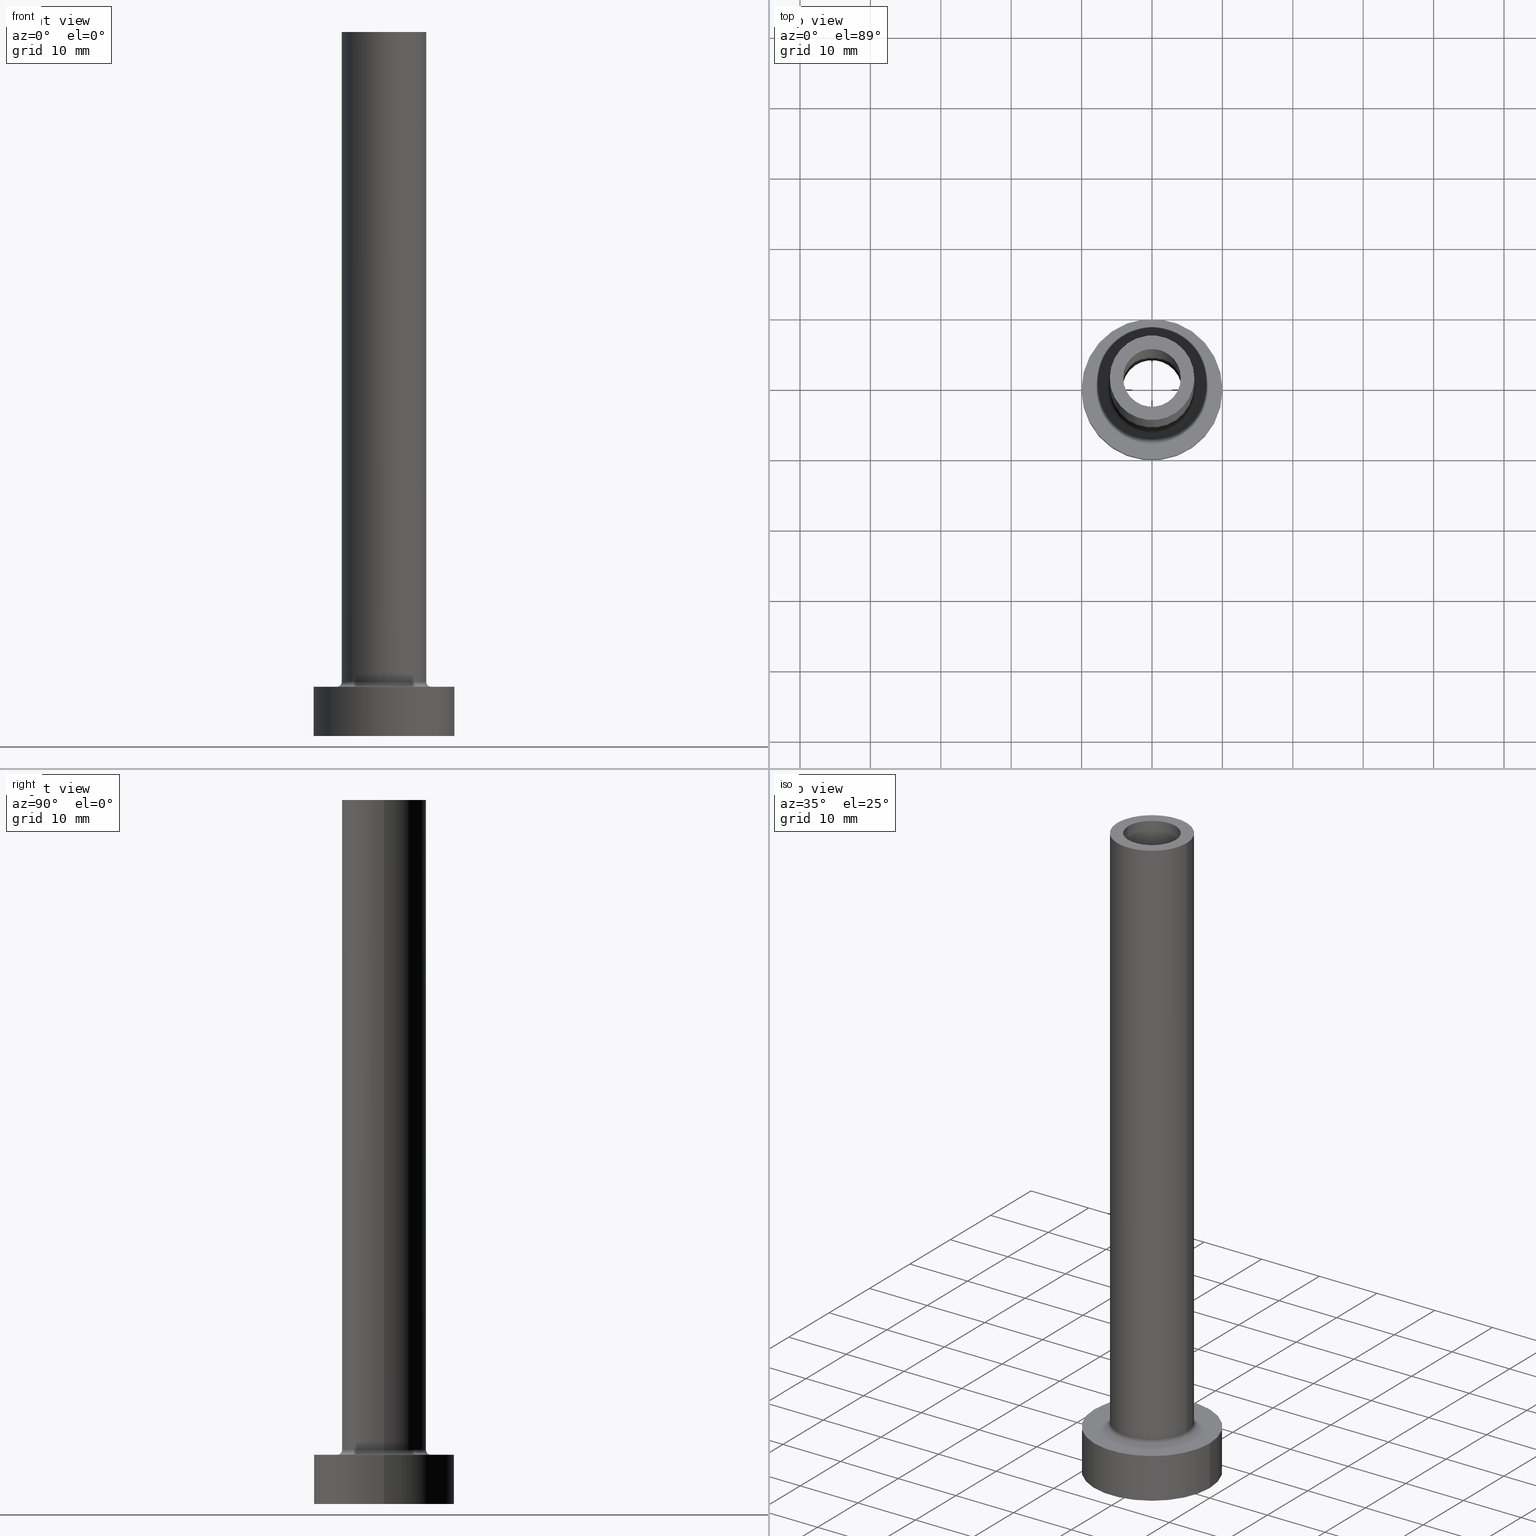
[diagram: canonical four-view strip — front | top / right | iso, engineering-drawing reading convention]
A machine part, canonical four-view strip (front | top / right | iso — engineering-drawing reading convention). The complete STEP part file that produces these views, byte-faithful:
ISO-10303-21;
HEADER;
FILE_DESCRIPTION (( 'STEP AP203' ),
    '1' );
FILE_NAME ('a538.STEP',
    '2023-02-13T09:09:29',
    ( '' ),
    ( '' ),
    'SwSTEP 2.0',
    'SolidWorks 2019',
    '' );
FILE_SCHEMA (( 'CONFIG_CONTROL_DESIGN' ));
ENDSEC;

DATA;
#1 = ORIENTED_EDGE ( 'NONE', *, *, #73, .T. ) ;
#2 = DATE_TIME_ROLE ( 'creation_date' ) ;
#3 = ORIENTED_EDGE ( 'NONE', *, *, #106, .F. ) ;
#4 = AXIS2_PLACEMENT_3D ( 'NONE', #336, #366, #379 ) ;
#5 = CIRCLE ( 'NONE', #334, 4.099999999999999645 ) ;
#6 = EDGE_CURVE ( 'NONE', #36, #221, #17, .T. ) ;
#7 = ORIENTED_EDGE ( 'NONE', *, *, #26, .F. ) ;
#8 = VECTOR ( 'NONE', #266, 1000.000000000000000 ) ;
#9 = CARTESIAN_POINT ( 'NONE',  ( 4.099999999999999645, 5.021051876504146399E-16, 55.00000000000000711 ) ) ;
#10 = EDGE_CURVE ( 'NONE', #215, #367, #236, .T. ) ;
#11 = ORIENTED_EDGE ( 'NONE', *, *, #222, .F. ) ;
#12 = DIRECTION ( 'NONE',  ( 0.000000000000000000, 0.000000000000000000, -1.000000000000000000 ) ) ;
#13 = CARTESIAN_POINT ( 'NONE',  ( 6.700000000000001066, 0.000000000000000000, 6.999999999999999112 ) ) ;
#14 = PLANE ( 'NONE',  #383 ) ;
#15 = CARTESIAN_POINT ( 'NONE',  ( 0.000000000000000000, 0.000000000000000000, 100.0000000000000000 ) ) ;
#16 = DIRECTION ( 'NONE',  ( 1.000000000000000000, 0.000000000000000000, 0.000000000000000000 ) ) ;
#17 = LINE ( 'NONE', #88, #8 ) ;
#18 = DIRECTION ( 'NONE',  ( 0.000000000000000000, 0.000000000000000000, 1.000000000000000000 ) ) ;
#19 = DIRECTION ( 'NONE',  ( 0.000000000000000000, 0.000000000000000000, -1.000000000000000000 ) ) ;
#20 = APPROVAL ( #251, 'NEUR�EN�' ) ;
#21 = CC_DESIGN_APPROVAL ( #57, ( #225 ) ) ;
#22 = DIRECTION ( 'NONE',  ( 1.000000000000000000, 0.000000000000000000, -0.000000000000000000 ) ) ;
#23 = CARTESIAN_POINT ( 'NONE',  ( 0.000000000000000000, 0.000000000000000000, 7.000000000000000000 ) ) ;
#24 = APPROVAL_STATUS ( 'not_yet_approved' ) ;
#25 = DIRECTION ( 'NONE',  ( 1.000000000000000000, 0.000000000000000000, 0.000000000000000000 ) ) ;
#26 = EDGE_CURVE ( 'NONE', #362, #67, #122, .T. ) ;
#27 = DIRECTION ( 'NONE',  ( 0.000000000000000000, 0.000000000000000000, 1.000000000000000000 ) ) ;
#28 = EDGE_CURVE ( 'NONE', #362, #140, #377, .T. ) ;
#29 = CC_DESIGN_PERSON_AND_ORGANIZATION_ASSIGNMENT ( #258, #136, ( #318 ) ) ;
#30 = FACE_OUTER_BOUND ( 'NONE', #111, .T. ) ;
#31 = ORIENTED_EDGE ( 'NONE', *, *, #368, .F. ) ;
#32 = AXIS2_PLACEMENT_3D ( 'NONE', #414, #64, #211 ) ;
#33 = EDGE_LOOP ( 'NONE', ( #178, #430, #144, #107 ) ) ;
#34 = AXIS2_PLACEMENT_3D ( 'NONE', #60, #206, #384 ) ;
#35 = ORIENTED_EDGE ( 'NONE', *, *, #315, .T. ) ;
#36 = VERTEX_POINT ( 'NONE', #445 ) ;
#37 = AXIS2_PLACEMENT_3D ( 'NONE', #269, #82, #374 ) ;
#38 = PERSON_AND_ORGANIZATION_ROLE ( 'classification_officer' ) ;
#39 = ORIENTED_EDGE ( 'NONE', *, *, #10, .F. ) ;
#40 = EDGE_CURVE ( 'NONE', #391, #327, #278, .T. ) ;
#41 = ORIENTED_EDGE ( 'NONE', *, *, #277, .F. ) ;
#42 = AXIS2_PLACEMENT_3D ( 'NONE', #399, #345, #407 ) ;
#43 = DIRECTION ( 'NONE',  ( 0.000000000000000000, 0.000000000000000000, 1.000000000000000000 ) ) ;
#44 = ORIENTED_EDGE ( 'NONE', *, *, #296, .T. ) ;
#45 = DIRECTION ( 'NONE',  ( 0.000000000000000000, 0.000000000000000000, 1.000000000000000000 ) ) ;
#46 = DIRECTION ( 'NONE',  ( 0.000000000000000000, 0.000000000000000000, 1.000000000000000000 ) ) ;
#47 = DIRECTION ( 'NONE',  ( 1.000000000000000000, 0.000000000000000000, 0.000000000000000000 ) ) ;
#48 = DIRECTION ( 'NONE',  ( -0.000000000000000000, -0.000000000000000000, -1.000000000000000000 ) ) ;
#49 = AXIS2_PLACEMENT_3D ( 'NONE', #190, #81, #443 ) ;
#50 = AXIS2_PLACEMENT_3D ( 'NONE', #294, #268, #185 ) ;
#51 = DESIGN_CONTEXT ( 'detailed design', #280, 'design' ) ;
#52 = DIRECTION ( 'NONE',  ( 0.000000000000000000, 0.000000000000000000, 1.000000000000000000 ) ) ;
#53 = DIRECTION ( 'NONE',  ( -0.000000000000000000, -0.000000000000000000, -1.000000000000000000 ) ) ;
#54 = FACE_OUTER_BOUND ( 'NONE', #112, .T. ) ;
#55 = ORIENTED_EDGE ( 'NONE', *, *, #184, .T. ) ;
#56 = CYLINDRICAL_SURFACE ( 'NONE', #156, 10.00000000000000000 ) ;
#57 = APPROVAL ( #24, 'NEUR�EN�' ) ;
#58 = VECTOR ( 'NONE', #297, 1000.000000000000000 ) ;
#59 = DIRECTION ( 'NONE',  ( 0.000000000000000000, 0.000000000000000000, 1.000000000000000000 ) ) ;
#60 = CARTESIAN_POINT ( 'NONE',  ( 0.000000000000000000, 0.000000000000000000, 100.0000000000000000 ) ) ;
#61 = CARTESIAN_POINT ( 'NONE',  ( 0.000000000000000000, 0.000000000000000000, 7.699999999999998401 ) ) ;
#62 = VECTOR ( 'NONE', #401, 1000.000000000000000 ) ;
#63 = DIRECTION ( 'NONE',  ( 1.000000000000000000, 0.000000000000000000, 0.000000000000000000 ) ) ;
#64 = DIRECTION ( 'NONE',  ( 0.000000000000000000, 0.000000000000000000, 1.000000000000000000 ) ) ;
#65 = CIRCLE ( 'NONE', #50, 6.700000000000001066 ) ;
#66 = DATE_AND_TIME ( #333, #442 ) ;
#67 = VERTEX_POINT ( 'NONE', #229 ) ;
#68 = PERSON_AND_ORGANIZATION ( #413, #357 ) ;
#69 = CC_DESIGN_SECURITY_CLASSIFICATION ( #223, ( #318 ) ) ;
#70 = ORIENTED_EDGE ( 'NONE', *, *, #404, .T. ) ;
#71 = PERSON_AND_ORGANIZATION ( #413, #357 ) ;
#72 = ORIENTED_EDGE ( 'NONE', *, *, #355, .T. ) ;
#73 = EDGE_CURVE ( 'NONE', #400, #289, #188, .T. ) ;
#74 = CALENDAR_DATE ( 2023, 13, 2 ) ;
#75 = VERTEX_POINT ( 'NONE', #13 ) ;
#76 = CYLINDRICAL_SURFACE ( 'NONE', #4, 10.00000000000000000 ) ;
#77 = VERTEX_POINT ( 'NONE', #153 ) ;
#78 = CIRCLE ( 'NONE', #433, 4.250000000000000000 ) ;
#79 = LINE ( 'NONE', #159, #62 ) ;
#80 = DIRECTION ( 'NONE',  ( 1.000000000000000000, 0.000000000000000000, 0.000000000000000000 ) ) ;
#81 = DIRECTION ( 'NONE',  ( 0.000000000000000000, 0.000000000000000000, 1.000000000000000000 ) ) ;
#82 = DIRECTION ( 'NONE',  ( -0.000000000000000000, -0.000000000000000000, -1.000000000000000000 ) ) ;
#83 = CARTESIAN_POINT ( 'NONE',  ( -4.250000000000000000, 0.000000000000000000, 0.000000000000000000 ) ) ;
#84 = CYLINDRICAL_SURFACE ( 'NONE', #298, 4.099999999999999645 ) ;
#85 = CC_DESIGN_PERSON_AND_ORGANIZATION_ASSIGNMENT ( #68, #38, ( #223 ) ) ;
#86 = AXIS2_PLACEMENT_3D ( 'NONE', #207, #93, #353 ) ;
#87 = DIRECTION ( 'NONE',  ( 1.000000000000000000, 0.000000000000000000, 0.000000000000000000 ) ) ;
#88 = CARTESIAN_POINT ( 'NONE',  ( 4.250000000000000000, 5.204748896376250699E-16, 67.02081528017131973 ) ) ;
#89 = FACE_BOUND ( 'NONE', #226, .T. ) ;
#90 = CC_DESIGN_PERSON_AND_ORGANIZATION_ASSIGNMENT ( #165, #279, ( #275 ) ) ;
#91 = LINE ( 'NONE', #238, #361 ) ;
#92 = DIRECTION ( 'NONE',  ( 0.000000000000000000, 0.000000000000000000, 1.000000000000000000 ) ) ;
#93 = DIRECTION ( 'NONE',  ( 0.000000000000000000, 0.000000000000000000, 1.000000000000000000 ) ) ;
#94 =( GEOMETRIC_REPRESENTATION_CONTEXT ( 3 ) GLOBAL_UNCERTAINTY_ASSIGNED_CONTEXT ( ( #151 ) ) GLOBAL_UNIT_ASSIGNED_CONTEXT ( ( #412, #237, #210 ) ) REPRESENTATION_CONTEXT ( 'NONE', 'WORKASPACE' ) );
#95 = PLANE ( 'NONE',  #161 ) ;
#96 = ADVANCED_FACE ( 'NONE', ( #128 ), #231, .T. ) ;
#97 = DIRECTION ( 'NONE',  ( 1.000000000000000000, 0.000000000000000000, 0.000000000000000000 ) ) ;
#98 = MANIFOLD_SOLID_BREP ( 'Odebrat vysunut�m4', #213 ) ;
#99 = DIRECTION ( 'NONE',  ( -0.000000000000000000, -0.000000000000000000, -1.000000000000000000 ) ) ;
#100 = CARTESIAN_POINT ( 'NONE',  ( 0.000000000000000000, 0.000000000000000000, 67.02081528017131973 ) ) ;
#101 = CARTESIAN_POINT ( 'NONE',  ( 0.000000000000000000, 0.000000000000000000, 55.00000000000000711 ) ) ;
#102 = CC_DESIGN_DATE_AND_TIME_ASSIGNMENT ( #326, #254, ( #223 ) ) ;
#103 = CIRCLE ( 'NONE', #49, 4.099999999999999645 ) ;
#104 = CARTESIAN_POINT ( 'NONE',  ( 6.000000000000000888, 7.347880794884119736E-16, 7.699999999999998401 ) ) ;
#105 = CIRCLE ( 'NONE', #168, 6.700000000000001066 ) ;
#106 = EDGE_CURVE ( 'NONE', #67, #391, #91, .T. ) ;
#107 = ORIENTED_EDGE ( 'NONE', *, *, #328, .F. ) ;
#108 = COORDINATED_UNIVERSAL_TIME_OFFSET ( 1, 0, .AHEAD. ) ;
#109 = CARTESIAN_POINT ( 'NONE',  ( -4.250000000000000000, 0.000000000000000000, 67.02081528017131973 ) ) ;
#110 = APPROVAL ( #172, 'NEUR�EN�' ) ;
#111 = EDGE_LOOP ( 'NONE', ( #197, #402, #70, #359 ) ) ;
#112 = EDGE_LOOP ( 'NONE', ( #394, #11, #364, #44 ) ) ;
#113 = CC_DESIGN_PERSON_AND_ORGANIZATION_ASSIGNMENT ( #455, #145, ( #318 ) ) ;
#114 = ORIENTED_EDGE ( 'NONE', *, *, #73, .F. ) ;
#115 = VECTOR ( 'NONE', #19, 1000.000000000000000 ) ;
#116 = ORIENTED_EDGE ( 'NONE', *, *, #328, .T. ) ;
#117 = DIRECTION ( 'NONE',  ( 0.000000000000000000, -1.000000000000000000, 0.000000000000000000 ) ) ;
#118 = CIRCLE ( 'NONE', #191, 4.250000000000000000 ) ;
#119 = EDGE_LOOP ( 'NONE', ( #114, #439, #35, #421 ) ) ;
#120 = DIRECTION ( 'NONE',  ( -1.000000000000000000, 0.000000000000000000, 0.000000000000000000 ) ) ;
#121 = ORIENTED_EDGE ( 'NONE', *, *, #355, .F. ) ;
#122 = CIRCLE ( 'NONE', #259, 6.000000000000000888 ) ;
#123 = CARTESIAN_POINT ( 'NONE',  ( -4.099999999999999645, 0.000000000000000000, 100.0000000000000000 ) ) ;
#124 = DIRECTION ( 'NONE',  ( -0.000000000000000000, -0.000000000000000000, -1.000000000000000000 ) ) ;
#125 = CARTESIAN_POINT ( 'NONE',  ( 0.000000000000000000, 0.000000000000000000, 55.00000000000000711 ) ) ;
#126 = ADVANCED_FACE ( 'NONE', ( #382 ), #56, .T. ) ;
#127 = DIRECTION ( 'NONE',  ( 1.000000000000000000, 0.000000000000000000, 0.000000000000000000 ) ) ;
#128 = FACE_OUTER_BOUND ( 'NONE', #175, .T. ) ;
#129 = CARTESIAN_POINT ( 'NONE',  ( 0.000000000000000000, 0.000000000000000000, 55.00000000000000711 ) ) ;
#130 = ADVANCED_FACE ( 'NONE', ( #342 ), #84, .F. ) ;
#131 = DIRECTION ( 'NONE',  ( 0.000000000000000000, 0.000000000000000000, 1.000000000000000000 ) ) ;
#132 = CALENDAR_DATE ( 2023, 13, 2 ) ;
#133 = CARTESIAN_POINT ( 'NONE',  ( -10.00000000000000000, 0.000000000000000000, 7.000000000000000000 ) ) ;
#134 = DIRECTION ( 'NONE',  ( 0.000000000000000000, 0.000000000000000000, 1.000000000000000000 ) ) ;
#135 = DIRECTION ( 'NONE',  ( -0.000000000000000000, -0.000000000000000000, -1.000000000000000000 ) ) ;
#136 = PERSON_AND_ORGANIZATION_ROLE ( 'design_supplier' ) ;
#137 = ADVANCED_FACE ( 'NONE', ( #271, #405 ), #452, .T. ) ;
#138 = CC_DESIGN_APPROVAL ( #20, ( #223 ) ) ;
#139 = PERSON_AND_ORGANIZATION_ROLE ( 'creator' ) ;
#140 = VERTEX_POINT ( 'NONE', #104 ) ;
#141 = AXIS2_PLACEMENT_3D ( 'NONE', #243, #135, #317 ) ;
#142 = ORIENTED_EDGE ( 'NONE', *, *, #265, .F. ) ;
#143 = EDGE_CURVE ( 'NONE', #321, #221, #288, .T. ) ;
#144 = ORIENTED_EDGE ( 'NONE', *, *, #227, .F. ) ;
#145 = PERSON_AND_ORGANIZATION_ROLE ( 'creator' ) ;
#146 = AXIS2_PLACEMENT_3D ( 'NONE', #351, #198, #347 ) ;
#147 = ORIENTED_EDGE ( 'NONE', *, *, #331, .F. ) ;
#148 = ORIENTED_EDGE ( 'NONE', *, *, #143, .T. ) ;
#149 = FACE_BOUND ( 'NONE', #409, .T. ) ;
#150 = CARTESIAN_POINT ( 'NONE',  ( 0.000000000000000000, 0.000000000000000000, 100.0000000000000000 ) ) ;
#151 = UNCERTAINTY_MEASURE_WITH_UNIT (LENGTH_MEASURE( 1.000000000000000082E-05 ), #412, 'distance_accuracy_value', 'NONE');
#152 = DIRECTION ( 'NONE',  ( 0.000000000000000000, 0.000000000000000000, -1.000000000000000000 ) ) ;
#153 = CARTESIAN_POINT ( 'NONE',  ( -4.099999999999999645, 0.000000000000000000, 55.00000000000000711 ) ) ;
#154 = CYLINDRICAL_SURFACE ( 'NONE', #42, 4.099999999999999645 ) ;
#155 = DIRECTION ( 'NONE',  ( -1.000000000000000000, 0.000000000000000000, 0.000000000000000000 ) ) ;
#156 = AXIS2_PLACEMENT_3D ( 'NONE', #337, #48, #192 ) ;
#157 = CYLINDRICAL_SURFACE ( 'NONE', #247, 4.250000000000000000 ) ;
#158 = PRODUCT_RELATED_PRODUCT_CATEGORY ( 'detail', '', ( #275 ) ) ;
#159 = CARTESIAN_POINT ( 'NONE',  ( -4.099999999999999645, 0.000000000000000000, 100.0000000000000000 ) ) ;
#160 = ORIENTED_EDGE ( 'NONE', *, *, #420, .F. ) ;
#161 = AXIS2_PLACEMENT_3D ( 'NONE', #450, #131, #22 ) ;
#162 = CIRCLE ( 'NONE', #319, 4.099999999999999645 ) ;
#163 = COORDINATED_UNIVERSAL_TIME_OFFSET ( 1, 0, .AHEAD. ) ;
#164 = CARTESIAN_POINT ( 'NONE',  ( 0.000000000000000000, 0.000000000000000000, 7.000000000000000000 ) ) ;
#165 = PERSON_AND_ORGANIZATION ( #413, #357 ) ;
#166 = DIRECTION ( 'NONE',  ( 0.000000000000000000, 0.000000000000000000, 1.000000000000000000 ) ) ;
#167 = AXIS2_PLACEMENT_3D ( 'NONE', #224, #43, #270 ) ;
#168 = AXIS2_PLACEMENT_3D ( 'NONE', #164, #416, #97 ) ;
#169 = ADVANCED_FACE ( 'NONE', ( #419 ), #204, .F. ) ;
#170 = DIRECTION ( 'NONE',  ( -1.000000000000000000, 0.000000000000000000, 0.000000000000000000 ) ) ;
#171 = CARTESIAN_POINT ( 'NONE',  ( 4.250000000000000000, 5.204748896376250699E-16, 0.000000000000000000 ) ) ;
#172 = APPROVAL_STATUS ( 'not_yet_approved' ) ;
#173 = EDGE_LOOP ( 'NONE', ( #458, #147, #371, #55 ) ) ;
#174 = AXIS2_PLACEMENT_3D ( 'NONE', #381, #134, #352 ) ;
#175 = EDGE_LOOP ( 'NONE', ( #7, #260, #305, #3 ) ) ;
#176 = COORDINATED_UNIVERSAL_TIME_OFFSET ( 1, 0, .AHEAD. ) ;
#177 = CARTESIAN_POINT ( 'NONE',  ( -4.250000000000000000, 0.000000000000000000, 55.00000000000000711 ) ) ;
#178 = ORIENTED_EDGE ( 'NONE', *, *, #184, .F. ) ;
#179 = APPROVAL_DATE_TIME ( #363, #20 ) ;
#180 = ORIENTED_EDGE ( 'NONE', *, *, #331, .T. ) ;
#181 = APPROVAL_PERSON_ORGANIZATION ( #427, #110, #329 ) ;
#182 = CIRCLE ( 'NONE', #397, 6.000000000000000888 ) ;
#183 = ORIENTED_EDGE ( 'NONE', *, *, #315, .F. ) ;
#184 = EDGE_CURVE ( 'NONE', #391, #140, #444, .T. ) ;
#185 = DIRECTION ( 'NONE',  ( 1.000000000000000000, 0.000000000000000000, 0.000000000000000000 ) ) ;
#186 = EDGE_LOOP ( 'NONE', ( #160, #41 ) ) ;
#187 = DIRECTION ( 'NONE',  ( 0.000000000000000000, 0.000000000000000000, 1.000000000000000000 ) ) ;
#188 = LINE ( 'NONE', #311, #115 ) ;
#189 = CC_DESIGN_DATE_AND_TIME_ASSIGNMENT ( #390, #2, ( #225 ) ) ;
#190 = CARTESIAN_POINT ( 'NONE',  ( 0.000000000000000000, 0.000000000000000000, 55.00000000000000711 ) ) ;
#191 = AXIS2_PLACEMENT_3D ( 'NONE', #451, #99, #205 ) ;
#192 = DIRECTION ( 'NONE',  ( -1.000000000000000000, 0.000000000000000000, 0.000000000000000000 ) ) ;
#193 = CARTESIAN_POINT ( 'NONE',  ( -10.00000000000000000, 0.000000000000000000, 0.000000000000000000 ) ) ;
#194 = ORIENTED_EDGE ( 'NONE', *, *, #216, .F. ) ;
#195 = PRODUCT_DEFINITION_SHAPE ( 'NONE', 'NONE',  #225 ) ;
#196 = CARTESIAN_POINT ( 'NONE',  ( 0.000000000000000000, 0.000000000000000000, 0.000000000000000000 ) ) ;
#197 = ORIENTED_EDGE ( 'NONE', *, *, #429, .T. ) ;
#198 = DIRECTION ( 'NONE',  ( 0.000000000000000000, 0.000000000000000000, 1.000000000000000000 ) ) ;
#199 = DIRECTION ( 'NONE',  ( 0.000000000000000000, 0.000000000000000000, 1.000000000000000000 ) ) ;
#200 = AXIS2_PLACEMENT_3D ( 'NONE', #101, #166, #354 ) ;
#201 = CARTESIAN_POINT ( 'NONE',  ( 10.00000000000000000, 1.224646799147353256E-15, 0.000000000000000000 ) ) ;
#202 = EDGE_CURVE ( 'NONE', #140, #391, #182, .T. ) ;
#203 = DIRECTION ( 'NONE',  ( 1.000000000000000000, 0.000000000000000000, 0.000000000000000000 ) ) ;
#204 = TOROIDAL_SURFACE ( 'NONE', #285, 6.700000000000001066, 0.6999999999999999556 ) ;
#205 = DIRECTION ( 'NONE',  ( 1.000000000000000000, 0.000000000000000000, 0.000000000000000000 ) ) ;
#206 = DIRECTION ( 'NONE',  ( -0.000000000000000000, -0.000000000000000000, -1.000000000000000000 ) ) ;
#207 = CARTESIAN_POINT ( 'NONE',  ( 0.000000000000000000, 0.000000000000000000, 7.699999999999998401 ) ) ;
#208 = LOCAL_TIME ( 10, 9, 29.00000000000000000, #163 ) ;
#209 = CIRCLE ( 'NONE', #262, 10.00000000000000000 ) ;
#210 =( NAMED_UNIT ( * ) SI_UNIT ( $, .STERADIAN. ) SOLID_ANGLE_UNIT ( ) );
#211 = DIRECTION ( 'NONE',  ( 1.000000000000000000, 0.000000000000000000, -0.000000000000000000 ) ) ;
#212 = EDGE_CURVE ( 'NONE', #36, #257, #248, .T. ) ;
#213 = CLOSED_SHELL ( 'NONE', ( #293, #436, #169, #96, #126, #282, #137, #446, #422, #387, #449, #358, #310, #130 ) ) ;
#214 = APPROVAL_DATE_TIME ( #392, #57 ) ;
#215 = VERTEX_POINT ( 'NONE', #133 ) ;
#216 = EDGE_CURVE ( 'NONE', #448, #367, #456, .T. ) ;
#217 = ORIENTED_EDGE ( 'NONE', *, *, #216, .T. ) ;
#218 = PERSON_AND_ORGANIZATION ( #413, #357 ) ;
#219 = EDGE_LOOP ( 'NONE', ( #396, #1, #31, #183 ) ) ;
#220 = CALENDAR_DATE ( 2023, 13, 2 ) ;
#221 = VERTEX_POINT ( 'NONE', #171 ) ;
#222 = EDGE_CURVE ( 'NONE', #215, #295, #209, .T. ) ;
#223 = SECURITY_CLASSIFICATION ( '', '', #249 ) ;
#224 = CARTESIAN_POINT ( 'NONE',  ( 0.000000000000000000, 0.000000000000000000, 55.00000000000000711 ) ) ;
#225 = PRODUCT_DEFINITION ( 'NEZN�M�', '', #318, #51 ) ;
#226 = EDGE_LOOP ( 'NONE', ( #461, #299 ) ) ;
#227 = EDGE_CURVE ( 'NONE', #75, #327, #105, .T. ) ;
#228 = CARTESIAN_POINT ( 'NONE',  ( 0.000000000000000000, 0.000000000000000000, 7.000000000000000000 ) ) ;
#229 = CARTESIAN_POINT ( 'NONE',  ( -6.000000000000000888, 0.000000000000000000, 100.0000000000000000 ) ) ;
#230 = LINE ( 'NONE', #403, #457 ) ;
#231 = CYLINDRICAL_SURFACE ( 'NONE', #37, 6.000000000000000888 ) ;
#232 = DIRECTION ( 'NONE',  ( -0.000000000000000000, -0.000000000000000000, -1.000000000000000000 ) ) ;
#233 = CIRCLE ( 'NONE', #174, 4.099999999999999645 ) ;
#234 = DIRECTION ( 'NONE',  ( 0.000000000000000000, 0.000000000000000000, -1.000000000000000000 ) ) ;
#235 = CARTESIAN_POINT ( 'NONE',  ( -6.700000000000001066, 8.205133554287267548E-16, 6.999999999999999112 ) ) ;
#236 = LINE ( 'NONE', #435, #453 ) ;
#237 =( NAMED_UNIT ( * ) PLANE_ANGLE_UNIT ( ) SI_UNIT ( $, .RADIAN. ) );
#238 = CARTESIAN_POINT ( 'NONE',  ( -6.000000000000000888, 0.000000000000000000, 100.0000000000000000 ) ) ;
#239 = APPLICATION_PROTOCOL_DEFINITION ( 'international standard', 'config_control_design', 1994, #280 ) ;
#240 = DIRECTION ( 'NONE',  ( 1.000000000000000000, 0.000000000000000000, 0.000000000000000000 ) ) ;
#241 = LOCAL_TIME ( 10, 9, 29.00000000000000000, #459 ) ;
#242 = ORIENTED_EDGE ( 'NONE', *, *, #212, .F. ) ;
#243 = CARTESIAN_POINT ( 'NONE',  ( 0.000000000000000000, 0.000000000000000000, 0.000000000000000000 ) ) ;
#244 = FACE_OUTER_BOUND ( 'NONE', #301, .T. ) ;
#245 = EDGE_CURVE ( 'NONE', #257, #321, #460, .T. ) ;
#246 = DIRECTION ( 'NONE',  ( 0.000000000000000000, 0.000000000000000000, -1.000000000000000000 ) ) ;
#247 = AXIS2_PLACEMENT_3D ( 'NONE', #343, #12, #120 ) ;
#248 = CIRCLE ( 'NONE', #200, 4.250000000000000000 ) ;
#249 = SECURITY_CLASSIFICATION_LEVEL ( 'unclassified' ) ;
#250 = DIRECTION ( 'NONE',  ( 1.000000000000000000, 0.000000000000000000, 0.000000000000000000 ) ) ;
#251 = APPROVAL_STATUS ( 'not_yet_approved' ) ;
#252 = ORIENTED_EDGE ( 'NONE', *, *, #202, .F. ) ;
#253 = APPLICATION_CONTEXT ( 'configuration controlled 3d designs of mechanical parts and assemblies' ) ;
#254 = DATE_TIME_ROLE ( 'classification_date' ) ;
#255 = EDGE_LOOP ( 'NONE', ( #314, #432, #356, #148 ) ) ;
#256 = AXIS2_PLACEMENT_3D ( 'NONE', #196, #18, #87 ) ;
#257 = VERTEX_POINT ( 'NONE', #177 ) ;
#258 = PERSON_AND_ORGANIZATION ( #413, #357 ) ;
#259 = AXIS2_PLACEMENT_3D ( 'NONE', #150, #46, #80 ) ;
#260 = ORIENTED_EDGE ( 'NONE', *, *, #28, .T. ) ;
#261 = ORIENTED_EDGE ( 'NONE', *, *, #296, .F. ) ;
#262 = AXIS2_PLACEMENT_3D ( 'NONE', #23, #59, #203 ) ;
#263 = AXIS2_PLACEMENT_3D ( 'NONE', #100, #246, #170 ) ;
#264 = CARTESIAN_POINT ( 'NONE',  ( 0.000000000000000000, 0.000000000000000000, 100.0000000000000000 ) ) ;
#265 = EDGE_CURVE ( 'NONE', #327, #75, #65, .T. ) ;
#266 = DIRECTION ( 'NONE',  ( 0.000000000000000000, 0.000000000000000000, -1.000000000000000000 ) ) ;
#267 = EDGE_CURVE ( 'NONE', #289, #77, #162, .T. ) ;
#268 = DIRECTION ( 'NONE',  ( -0.000000000000000000, -0.000000000000000000, -1.000000000000000000 ) ) ;
#269 = CARTESIAN_POINT ( 'NONE',  ( 0.000000000000000000, 0.000000000000000000, 100.0000000000000000 ) ) ;
#270 = DIRECTION ( 'NONE',  ( 1.000000000000000000, 0.000000000000000000, -0.000000000000000000 ) ) ;
#271 = FACE_BOUND ( 'NONE', #428, .T. ) ;
#272 = FACE_OUTER_BOUND ( 'NONE', #219, .T. ) ;
#273 = CIRCLE ( 'NONE', #291, 6.000000000000000888 ) ;
#274 = ORIENTED_EDGE ( 'NONE', *, *, #265, .T. ) ;
#275 = PRODUCT ( 'a538', 'a538', '', ( #454 ) ) ;
#276 = EDGE_LOOP ( 'NONE', ( #121, #340, #217, #39 ) ) ;
#277 = EDGE_CURVE ( 'NONE', #400, #303, #5, .T. ) ;
#278 = CIRCLE ( 'NONE', #438, 0.7000000000000000666 ) ;
#279 = PERSON_AND_ORGANIZATION_ROLE ( 'design_owner' ) ;
#280 = APPLICATION_CONTEXT ( 'configuration controlled 3d designs of mechanical parts and assemblies' ) ;
#281 = DIRECTION ( 'NONE',  ( 0.000000000000000000, 0.000000000000000000, 1.000000000000000000 ) ) ;
#282 = ADVANCED_FACE ( 'NONE', ( #54 ), #76, .T. ) ;
#283 = CYLINDRICAL_SURFACE ( 'NONE', #34, 6.000000000000000888 ) ;
#284 = CARTESIAN_POINT ( 'NONE',  ( 0.000000000000000000, 0.000000000000000000, 7.699999999999998401 ) ) ;
#285 = AXIS2_PLACEMENT_3D ( 'NONE', #61, #27, #25 ) ;
#286 = LOCAL_TIME ( 10, 9, 29.00000000000000000, #176 ) ;
#287 = ORIENTED_EDGE ( 'NONE', *, *, #222, .T. ) ;
#288 = CIRCLE ( 'NONE', #141, 4.250000000000000000 ) ;
#289 = VERTEX_POINT ( 'NONE', #9 ) ;
#290 = ORIENTED_EDGE ( 'NONE', *, *, #26, .T. ) ;
#291 = AXIS2_PLACEMENT_3D ( 'NONE', #264, #45, #16 ) ;
#292 = SHAPE_DEFINITION_REPRESENTATION ( #195, #338 ) ;
#293 = ADVANCED_FACE ( 'NONE', ( #272 ), #154, .F. ) ;
#294 = CARTESIAN_POINT ( 'NONE',  ( 0.000000000000000000, 0.000000000000000000, 7.000000000000000000 ) ) ;
#295 = VERTEX_POINT ( 'NONE', #431 ) ;
#296 = EDGE_CURVE ( 'NONE', #367, #448, #426, .T. ) ;
#297 = DIRECTION ( 'NONE',  ( 0.000000000000000000, 0.000000000000000000, -1.000000000000000000 ) ) ;
#298 = AXIS2_PLACEMENT_3D ( 'NONE', #15, #234, #155 ) ;
#299 = ORIENTED_EDGE ( 'NONE', *, *, #404, .F. ) ;
#300 = FACE_OUTER_BOUND ( 'NONE', #389, .T. ) ;
#301 = EDGE_LOOP ( 'NONE', ( #330, #252, #116, #142 ) ) ;
#302 = DIRECTION ( 'NONE',  ( 0.000000000000000000, 0.000000000000000000, 1.000000000000000000 ) ) ;
#303 = VERTEX_POINT ( 'NONE', #123 ) ;
#304 = CARTESIAN_POINT ( 'NONE',  ( 0.000000000000000000, 0.000000000000000000, 100.0000000000000000 ) ) ;
#305 = ORIENTED_EDGE ( 'NONE', *, *, #202, .T. ) ;
#306 = DIRECTION ( 'NONE',  ( 1.000000000000000000, 0.000000000000000000, -0.000000000000000000 ) ) ;
#307 = DIRECTION ( 'NONE',  ( -0.000000000000000000, -0.000000000000000000, -1.000000000000000000 ) ) ;
#308 = CARTESIAN_POINT ( 'NONE',  ( 6.000000000000000888, 7.347880794884119736E-16, 100.0000000000000000 ) ) ;
#309 = AXIS2_PLACEMENT_3D ( 'NONE', #434, #117, #152 ) ;
#310 = ADVANCED_FACE ( 'NONE', ( #149, #300 ), #369, .F. ) ;
#311 = CARTESIAN_POINT ( 'NONE',  ( 4.099999999999999645, 5.021051876504146399E-16, 100.0000000000000000 ) ) ;
#312 = APPLICATION_PROTOCOL_DEFINITION ( 'international standard', 'config_control_design', 1994, #253 ) ;
#313 = DIRECTION ( 'NONE',  ( 1.000000000000000000, 0.000000000000000000, 0.000000000000000000 ) ) ;
#314 = ORIENTED_EDGE ( 'NONE', *, *, #6, .F. ) ;
#315 = EDGE_CURVE ( 'NONE', #303, #77, #79, .T. ) ;
#316 = FACE_OUTER_BOUND ( 'NONE', #335, .T. ) ;
#317 = DIRECTION ( 'NONE',  ( 1.000000000000000000, 0.000000000000000000, 0.000000000000000000 ) ) ;
#318 = PRODUCT_DEFINITION_FORMATION_WITH_SPECIFIED_SOURCE ( 'LIBOVOLN�', '', #275, .NOT_KNOWN. ) ;
#319 = AXIS2_PLACEMENT_3D ( 'NONE', #125, #302, #437 ) ;
#320 = CARTESIAN_POINT ( 'NONE',  ( 4.099999999999999645, 5.021051876504146399E-16, 100.0000000000000000 ) ) ;
#321 = VERTEX_POINT ( 'NONE', #83 ) ;
#322 = APPROVAL_DATE_TIME ( #66, #110 ) ;
#323 = CIRCLE ( 'NONE', #309, 0.7000000000000000666 ) ;
#324 = CC_DESIGN_APPROVAL ( #110, ( #318 ) ) ;
#325 = ORIENTED_EDGE ( 'NONE', *, *, #429, .F. ) ;
#326 = DATE_AND_TIME ( #220, #286 ) ;
#327 = VERTEX_POINT ( 'NONE', #235 ) ;
#328 = EDGE_CURVE ( 'NONE', #140, #75, #323, .T. ) ;
#329 = APPROVAL_ROLE ( '' ) ;
#330 = ORIENTED_EDGE ( 'NONE', *, *, #40, .F. ) ;
#331 = EDGE_CURVE ( 'NONE', #67, #362, #273, .T. ) ;
#332 = AXIS2_PLACEMENT_3D ( 'NONE', #447, #92, #313 ) ;
#333 = CALENDAR_DATE ( 2023, 13, 2 ) ;
#334 = AXIS2_PLACEMENT_3D ( 'NONE', #339, #376, #127 ) ;
#335 = EDGE_LOOP ( 'NONE', ( #261, #194 ) ) ;
#336 = CARTESIAN_POINT ( 'NONE',  ( 0.000000000000000000, 0.000000000000000000, 7.000000000000000000 ) ) ;
#337 = CARTESIAN_POINT ( 'NONE',  ( 0.000000000000000000, 0.000000000000000000, 7.000000000000000000 ) ) ;
#338 = ADVANCED_BREP_SHAPE_REPRESENTATION ( 'a538', ( #98, #146 ), #94 ) ;
#339 = CARTESIAN_POINT ( 'NONE',  ( 0.000000000000000000, 0.000000000000000000, 100.0000000000000000 ) ) ;
#340 = ORIENTED_EDGE ( 'NONE', *, *, #378, .T. ) ;
#341 = FACE_OUTER_BOUND ( 'NONE', #385, .T. ) ;
#342 = FACE_OUTER_BOUND ( 'NONE', #119, .T. ) ;
#343 = CARTESIAN_POINT ( 'NONE',  ( 0.000000000000000000, 0.000000000000000000, 67.02081528017131973 ) ) ;
#344 = EDGE_LOOP ( 'NONE', ( #287, #72 ) ) ;
#345 = DIRECTION ( 'NONE',  ( 0.000000000000000000, 0.000000000000000000, -1.000000000000000000 ) ) ;
#346 = CARTESIAN_POINT ( 'NONE',  ( -6.700000000000001066, 8.205133554287267548E-16, 7.699999999999998401 ) ) ;
#347 = DIRECTION ( 'NONE',  ( 1.000000000000000000, 0.000000000000000000, 0.000000000000000000 ) ) ;
#348 = APPROVAL_PERSON_ORGANIZATION ( #218, #20, #424 ) ;
#349 = CARTESIAN_POINT ( 'NONE',  ( 0.000000000000000000, 0.000000000000000000, 0.000000000000000000 ) ) ;
#350 = PERSON_AND_ORGANIZATION ( #413, #357 ) ;
#351 = CARTESIAN_POINT ( 'NONE',  ( 0.000000000000000000, 0.000000000000000000, 0.000000000000000000 ) ) ;
#352 = DIRECTION ( 'NONE',  ( 1.000000000000000000, 0.000000000000000000, 0.000000000000000000 ) ) ;
#353 = DIRECTION ( 'NONE',  ( 1.000000000000000000, 0.000000000000000000, 0.000000000000000000 ) ) ;
#354 = DIRECTION ( 'NONE',  ( 1.000000000000000000, 0.000000000000000000, 0.000000000000000000 ) ) ;
#355 = EDGE_CURVE ( 'NONE', #295, #215, #406, .T. ) ;
#356 = ORIENTED_EDGE ( 'NONE', *, *, #245, .T. ) ;
#357 = ORGANIZATION ( 'NEUR�EN�', 'NEUR�EN�', '' ) ;
#358 = ADVANCED_FACE ( 'NONE', ( #395 ), #157, .F. ) ;
#359 = ORIENTED_EDGE ( 'NONE', *, *, #245, .F. ) ;
#360 = COORDINATED_UNIVERSAL_TIME_OFFSET ( 1, 0, .AHEAD. ) ;
#361 = VECTOR ( 'NONE', #124, 1000.000000000000000 ) ;
#362 = VERTEX_POINT ( 'NONE', #308 ) ;
#363 = DATE_AND_TIME ( #388, #241 ) ;
#364 = ORIENTED_EDGE ( 'NONE', *, *, #10, .T. ) ;
#365 = TOROIDAL_SURFACE ( 'NONE', #332, 6.700000000000001066, 0.6999999999999999556 ) ;
#366 = DIRECTION ( 'NONE',  ( -0.000000000000000000, -0.000000000000000000, -1.000000000000000000 ) ) ;
#367 = VERTEX_POINT ( 'NONE', #193 ) ;
#368 = EDGE_CURVE ( 'NONE', #77, #289, #103, .T. ) ;
#369 = PLANE ( 'NONE',  #167 ) ;
#370 = VECTOR ( 'NONE', #307, 1000.000000000000000 ) ;
#371 = ORIENTED_EDGE ( 'NONE', *, *, #106, .T. ) ;
#372 = CC_DESIGN_PERSON_AND_ORGANIZATION_ASSIGNMENT ( #71, #139, ( #225 ) ) ;
#373 = FACE_BOUND ( 'NONE', #186, .T. ) ;
#374 = DIRECTION ( 'NONE',  ( -1.000000000000000000, 0.000000000000000000, 0.000000000000000000 ) ) ;
#375 = AXIS2_PLACEMENT_3D ( 'NONE', #228, #187, #47 ) ;
#376 = DIRECTION ( 'NONE',  ( 0.000000000000000000, 0.000000000000000000, 1.000000000000000000 ) ) ;
#377 = LINE ( 'NONE', #411, #370 ) ;
#378 = EDGE_CURVE ( 'NONE', #295, #448, #230, .T. ) ;
#379 = DIRECTION ( 'NONE',  ( -1.000000000000000000, 0.000000000000000000, 0.000000000000000000 ) ) ;
#380 = DIRECTION ( 'NONE',  ( -1.000000000000000000, 1.224646799147353454E-16, 0.000000000000000000 ) ) ;
#381 = CARTESIAN_POINT ( 'NONE',  ( 0.000000000000000000, 0.000000000000000000, 100.0000000000000000 ) ) ;
#382 = FACE_OUTER_BOUND ( 'NONE', #276, .T. ) ;
#383 = AXIS2_PLACEMENT_3D ( 'NONE', #304, #52, #306 ) ;
#384 = DIRECTION ( 'NONE',  ( -1.000000000000000000, 0.000000000000000000, 0.000000000000000000 ) ) ;
#385 = EDGE_LOOP ( 'NONE', ( #180, #290 ) ) ;
#386 = LOCAL_TIME ( 10, 9, 29.00000000000000000, #108 ) ;
#387 = ADVANCED_FACE ( 'NONE', ( #373, #341 ), #14, .T. ) ;
#388 = CALENDAR_DATE ( 2023, 13, 2 ) ;
#389 = EDGE_LOOP ( 'NONE', ( #325, #242 ) ) ;
#390 = DATE_AND_TIME ( #74, #386 ) ;
#391 = VERTEX_POINT ( 'NONE', #440 ) ;
#392 = DATE_AND_TIME ( #132, #208 ) ;
#393 = ORIENTED_EDGE ( 'NONE', *, *, #267, .T. ) ;
#394 = ORIENTED_EDGE ( 'NONE', *, *, #378, .F. ) ;
#395 = FACE_OUTER_BOUND ( 'NONE', #255, .T. ) ;
#396 = ORIENTED_EDGE ( 'NONE', *, *, #420, .T. ) ;
#397 = AXIS2_PLACEMENT_3D ( 'NONE', #284, #199, #250 ) ;
#398 = APPROVAL_PERSON_ORGANIZATION ( #350, #57, #417 ) ;
#399 = CARTESIAN_POINT ( 'NONE',  ( 0.000000000000000000, 0.000000000000000000, 100.0000000000000000 ) ) ;
#400 = VERTEX_POINT ( 'NONE', #320 ) ;
#401 = DIRECTION ( 'NONE',  ( 0.000000000000000000, 0.000000000000000000, -1.000000000000000000 ) ) ;
#402 = ORIENTED_EDGE ( 'NONE', *, *, #6, .T. ) ;
#403 = CARTESIAN_POINT ( 'NONE',  ( 10.00000000000000000, 1.224646799147353256E-15, 7.000000000000000000 ) ) ;
#404 = EDGE_CURVE ( 'NONE', #221, #321, #118, .T. ) ;
#405 = FACE_OUTER_BOUND ( 'NONE', #344, .T. ) ;
#406 = CIRCLE ( 'NONE', #375, 10.00000000000000000 ) ;
#407 = DIRECTION ( 'NONE',  ( -1.000000000000000000, 0.000000000000000000, 0.000000000000000000 ) ) ;
#408 = AXIS2_PLACEMENT_3D ( 'NONE', #349, #281, #240 ) ;
#409 = EDGE_LOOP ( 'NONE', ( #425, #393 ) ) ;
#410 = FACE_OUTER_BOUND ( 'NONE', #173, .T. ) ;
#411 = CARTESIAN_POINT ( 'NONE',  ( 6.000000000000000888, 7.347880794884119736E-16, 100.0000000000000000 ) ) ;
#412 =( LENGTH_UNIT ( ) NAMED_UNIT ( * ) SI_UNIT ( .MILLI., .METRE. ) );
#413 = PERSON ( 'NEUR�EN�', 'NEUR�EN�', 'NEUR�EN�', ('NEUR�EN�'), ('NEUR�EN�'), ('NEUR�EN�') ) ;
#414 = CARTESIAN_POINT ( 'NONE',  ( 0.000000000000000000, 0.000000000000000000, 7.000000000000000000 ) ) ;
#415 = DIRECTION ( 'NONE',  ( 0.000000000000000000, 0.000000000000000000, 1.000000000000000000 ) ) ;
#416 = DIRECTION ( 'NONE',  ( -0.000000000000000000, -0.000000000000000000, -1.000000000000000000 ) ) ;
#417 = APPROVAL_ROLE ( '' ) ;
#418 = CYLINDRICAL_SURFACE ( 'NONE', #263, 4.250000000000000000 ) ;
#419 = FACE_OUTER_BOUND ( 'NONE', #33, .T. ) ;
#420 = EDGE_CURVE ( 'NONE', #303, #400, #233, .T. ) ;
#421 = ORIENTED_EDGE ( 'NONE', *, *, #267, .F. ) ;
#422 = ADVANCED_FACE ( 'NONE', ( #410 ), #283, .T. ) ;
#423 = ORIENTED_EDGE ( 'NONE', *, *, #227, .T. ) ;
#424 = APPROVAL_ROLE ( '' ) ;
#425 = ORIENTED_EDGE ( 'NONE', *, *, #368, .T. ) ;
#426 = CIRCLE ( 'NONE', #256, 10.00000000000000000 ) ;
#427 = PERSON_AND_ORGANIZATION ( #413, #357 ) ;
#428 = EDGE_LOOP ( 'NONE', ( #423, #274 ) ) ;
#429 = EDGE_CURVE ( 'NONE', #257, #36, #78, .T. ) ;
#430 = ORIENTED_EDGE ( 'NONE', *, *, #40, .T. ) ;
#431 = CARTESIAN_POINT ( 'NONE',  ( 10.00000000000000000, 1.224646799147353256E-15, 7.000000000000000000 ) ) ;
#432 = ORIENTED_EDGE ( 'NONE', *, *, #212, .T. ) ;
#433 = AXIS2_PLACEMENT_3D ( 'NONE', #129, #415, #63 ) ;
#434 = CARTESIAN_POINT ( 'NONE',  ( 6.700000000000001066, 0.000000000000000000, 7.699999999999998401 ) ) ;
#435 = CARTESIAN_POINT ( 'NONE',  ( -10.00000000000000000, 0.000000000000000000, 7.000000000000000000 ) ) ;
#436 = ADVANCED_FACE ( 'NONE', ( #30 ), #418, .F. ) ;
#437 = DIRECTION ( 'NONE',  ( 1.000000000000000000, 0.000000000000000000, 0.000000000000000000 ) ) ;
#438 = AXIS2_PLACEMENT_3D ( 'NONE', #346, #441, #380 ) ;
#439 = ORIENTED_EDGE ( 'NONE', *, *, #277, .T. ) ;
#440 = CARTESIAN_POINT ( 'NONE',  ( -6.000000000000000888, 0.000000000000000000, 7.699999999999998401 ) ) ;
#441 = DIRECTION ( 'NONE',  ( 1.224646799147353207E-16, 1.000000000000000000, -0.000000000000000000 ) ) ;
#442 = LOCAL_TIME ( 10, 9, 29.00000000000000000, #360 ) ;
#443 = DIRECTION ( 'NONE',  ( 1.000000000000000000, 0.000000000000000000, 0.000000000000000000 ) ) ;
#444 = CIRCLE ( 'NONE', #86, 6.000000000000000888 ) ;
#445 = CARTESIAN_POINT ( 'NONE',  ( 4.250000000000000000, 5.204748896376250699E-16, 55.00000000000000711 ) ) ;
#446 = ADVANCED_FACE ( 'NONE', ( #89, #316 ), #95, .F. ) ;
#447 = CARTESIAN_POINT ( 'NONE',  ( 0.000000000000000000, 0.000000000000000000, 7.699999999999998401 ) ) ;
#448 = VERTEX_POINT ( 'NONE', #201 ) ;
#449 = ADVANCED_FACE ( 'NONE', ( #244 ), #365, .F. ) ;
#450 = CARTESIAN_POINT ( 'NONE',  ( 0.000000000000000000, 0.000000000000000000, 0.000000000000000000 ) ) ;
#451 = CARTESIAN_POINT ( 'NONE',  ( 0.000000000000000000, 0.000000000000000000, 0.000000000000000000 ) ) ;
#452 = PLANE ( 'NONE',  #32 ) ;
#453 = VECTOR ( 'NONE', #53, 1000.000000000000000 ) ;
#454 = MECHANICAL_CONTEXT ( 'NONE', #253, 'mechanical' ) ;
#455 = PERSON_AND_ORGANIZATION ( #413, #357 ) ;
#456 = CIRCLE ( 'NONE', #408, 10.00000000000000000 ) ;
#457 = VECTOR ( 'NONE', #232, 1000.000000000000000 ) ;
#458 = ORIENTED_EDGE ( 'NONE', *, *, #28, .F. ) ;
#459 = COORDINATED_UNIVERSAL_TIME_OFFSET ( 1, 0, .AHEAD. ) ;
#460 = LINE ( 'NONE', #109, #58 ) ;
#461 = ORIENTED_EDGE ( 'NONE', *, *, #143, .F. ) ;
ENDSEC;
END-ISO-10303-21;
